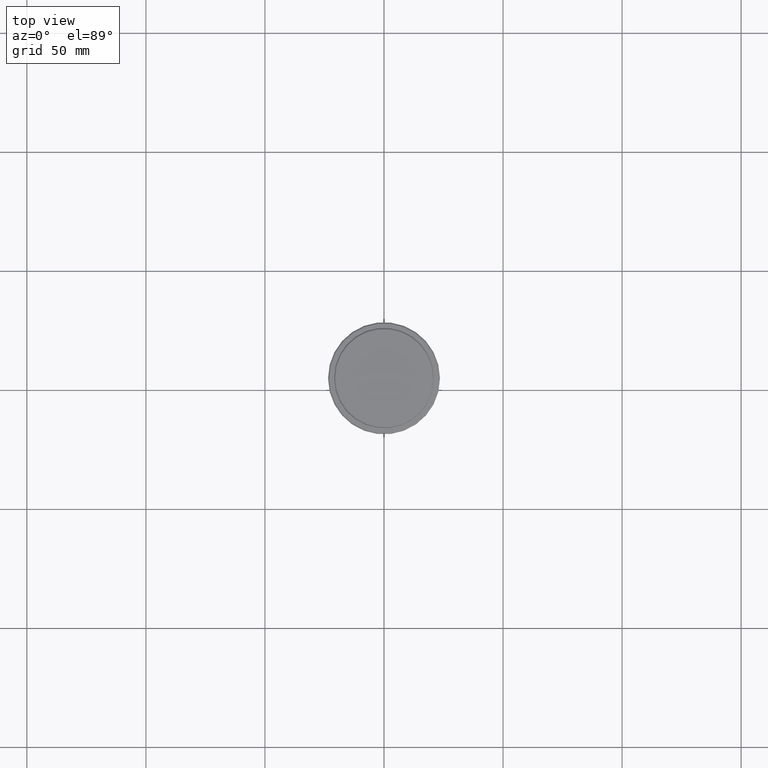
[diagram: clean part render]
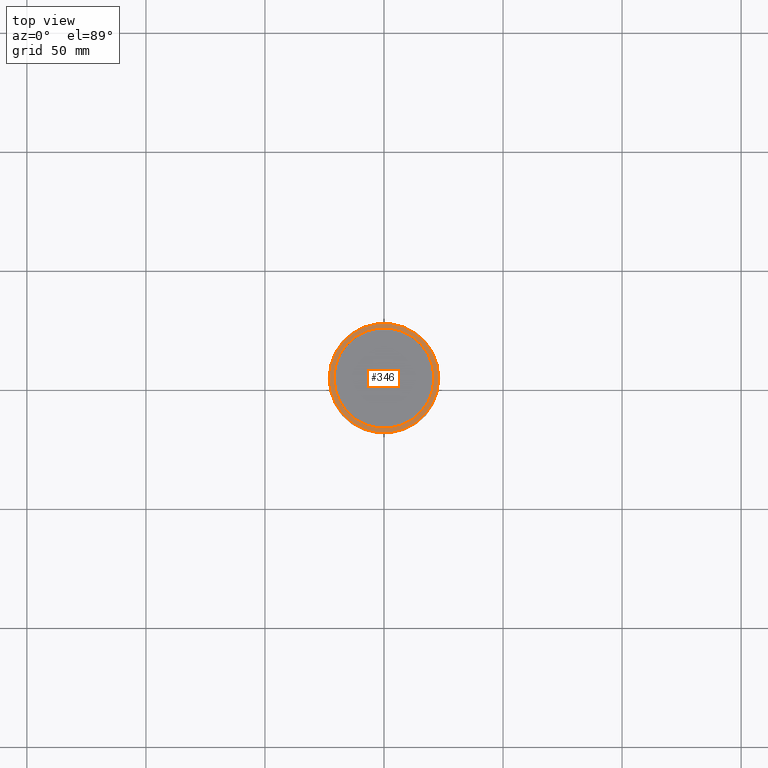
[diagram: same view with one face highlighted and labeled with its STEP entity id]
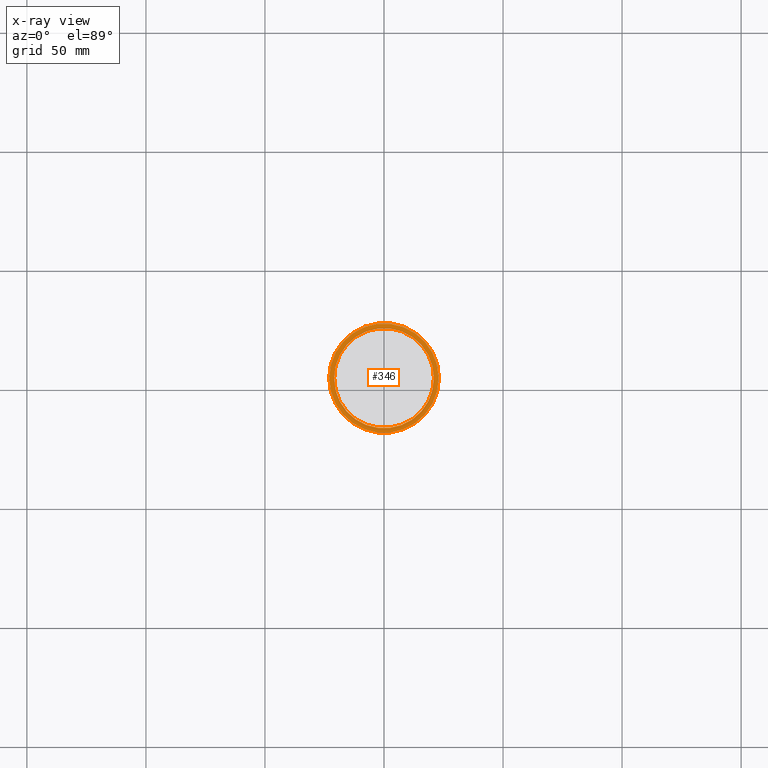
[diagram: x-ray of the same camera — body ghosted, the highlighted face saturated]
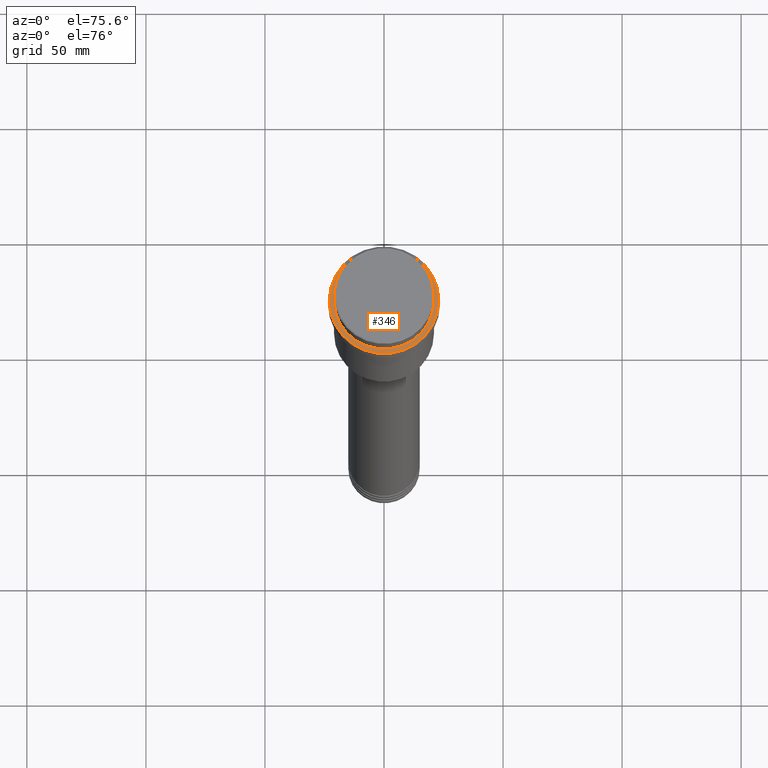
[diagram: same view with one face highlighted and labeled with its STEP entity id]
A machine part, top view. The second image highlights one B-rep face of the part: STEP entity #346.
The next image is the same camera in x-ray: the body ghosted, the highlighted face saturated — about 0% of this face is hidden behind the body in this view.
A second angle (auxiliary view) of the same face is appended — the face is thin or edge-on in the first view.
In plain terms, the highlighted planar face has unit normal (0, -0, 1).
Its self-contained STEP definition (entity closure, byte-faithful):
#14 = FACE_BOUND ( 'NONE', #1222, .T. ) ;
#55 = EDGE_CURVE ( 'NONE', #1143, #1083, #332, .T. ) ;
#72 = CIRCLE ( 'NONE', #1374, 23.00000000000005329 ) ;
#76 = ORIENTED_EDGE ( 'NONE', *, *, #562, .T. ) ;
#166 = CARTESIAN_POINT ( 'NONE',  ( 0.000000000000000000, 0.000000000000000000, -9.000000000000001776 ) ) ;
#225 = CARTESIAN_POINT ( 'NONE',  ( 0.000000000000000000, 20.49999999999999645, -9.000000000000001776 ) ) ;
#235 = DIRECTION ( 'NONE',  ( -0.000000000000000000, -0.000000000000000000, 1.000000000000000000 ) ) ;
#241 = CIRCLE ( 'NONE', #1236, 20.99999999999999289 ) ;
#278 = ORIENTED_EDGE ( 'NONE', *, *, #459, .T. ) ;
#279 = DIRECTION ( 'NONE',  ( 1.000000000000000000, 0.000000000000000000, 0.000000000000000000 ) ) ;
#332 = CIRCLE ( 'NONE', #1163, 20.99999999999999289 ) ;
#333 = CIRCLE ( 'NONE', #882, 23.00000000000005329 ) ;
#346 = ADVANCED_FACE ( 'NONE', ( #1320, #14 ), #1301, .T. ) ;
#459 = EDGE_CURVE ( 'NONE', #903, #1262, #72, .T. ) ;
#490 = CARTESIAN_POINT ( 'NONE',  ( 0.000000000000000000, 0.000000000000000000, -9.000000000000001776 ) ) ;
#547 = EDGE_CURVE ( 'NONE', #1262, #903, #333, .T. ) ;
#559 = CARTESIAN_POINT ( 'NONE',  ( 0.000000000000000000, 0.000000000000000000, -9.000000000000001776 ) ) ;
#562 = EDGE_CURVE ( 'NONE', #1083, #1143, #241, .T. ) ;
#617 = ORIENTED_EDGE ( 'NONE', *, *, #55, .T. ) ;
#634 = DIRECTION ( 'NONE',  ( 0.000000000000000000, -0.000000000000000000, 1.000000000000000000 ) ) ;
#644 = DIRECTION ( 'NONE',  ( 1.000000000000000000, 0.000000000000000000, 0.000000000000000000 ) ) ;
#689 = CARTESIAN_POINT ( 'NONE',  ( 20.99999999999999289, 0.000000000000000000, -9.000000000000001776 ) ) ;
#700 = EDGE_LOOP ( 'NONE', ( #278, #740 ) ) ;
#740 = ORIENTED_EDGE ( 'NONE', *, *, #547, .T. ) ;
#759 = DIRECTION ( 'NONE',  ( 1.000000000000000000, 0.000000000000000000, 0.000000000000000000 ) ) ;
#804 = DIRECTION ( 'NONE',  ( -0.000000000000000000, -0.000000000000000000, 1.000000000000000000 ) ) ;
#815 = AXIS2_PLACEMENT_3D ( 'NONE', #225, #634, #759 ) ;
#824 = DIRECTION ( 'NONE',  ( 1.000000000000000000, 0.000000000000000000, 0.000000000000000000 ) ) ;
#876 = DIRECTION ( 'NONE',  ( 0.000000000000000000, 0.000000000000000000, -1.000000000000000000 ) ) ;
#882 = AXIS2_PLACEMENT_3D ( 'NONE', #166, #804, #824 ) ;
#900 = CARTESIAN_POINT ( 'NONE',  ( 0.000000000000000000, 0.000000000000000000, -9.000000000000001776 ) ) ;
#903 = VERTEX_POINT ( 'NONE', #1390 ) ;
#1083 = VERTEX_POINT ( 'NONE', #689 ) ;
#1143 = VERTEX_POINT ( 'NONE', #1199 ) ;
#1163 = AXIS2_PLACEMENT_3D ( 'NONE', #559, #876, #644 ) ;
#1199 = CARTESIAN_POINT ( 'NONE',  ( -20.99999999999999289, 2.571758278209440872E-15, -9.000000000000001776 ) ) ;
#1222 = EDGE_LOOP ( 'NONE', ( #76, #617 ) ) ;
#1236 = AXIS2_PLACEMENT_3D ( 'NONE', #490, #1252, #279 ) ;
#1252 = DIRECTION ( 'NONE',  ( 0.000000000000000000, 0.000000000000000000, -1.000000000000000000 ) ) ;
#1262 = VERTEX_POINT ( 'NONE', #1289 ) ;
#1289 = CARTESIAN_POINT ( 'NONE',  ( 23.00000000000005329, 2.847303808017599689E-15, -9.000000000000001776 ) ) ;
#1301 = PLANE ( 'NONE',  #815 ) ;
#1320 = FACE_OUTER_BOUND ( 'NONE', #700, .T. ) ;
#1328 = DIRECTION ( 'NONE',  ( 1.000000000000000000, 0.000000000000000000, 0.000000000000000000 ) ) ;
#1374 = AXIS2_PLACEMENT_3D ( 'NONE', #900, #235, #1328 ) ;
#1390 = CARTESIAN_POINT ( 'NONE',  ( -23.00000000000005329, 0.000000000000000000, -9.000000000000001776 ) ) ;